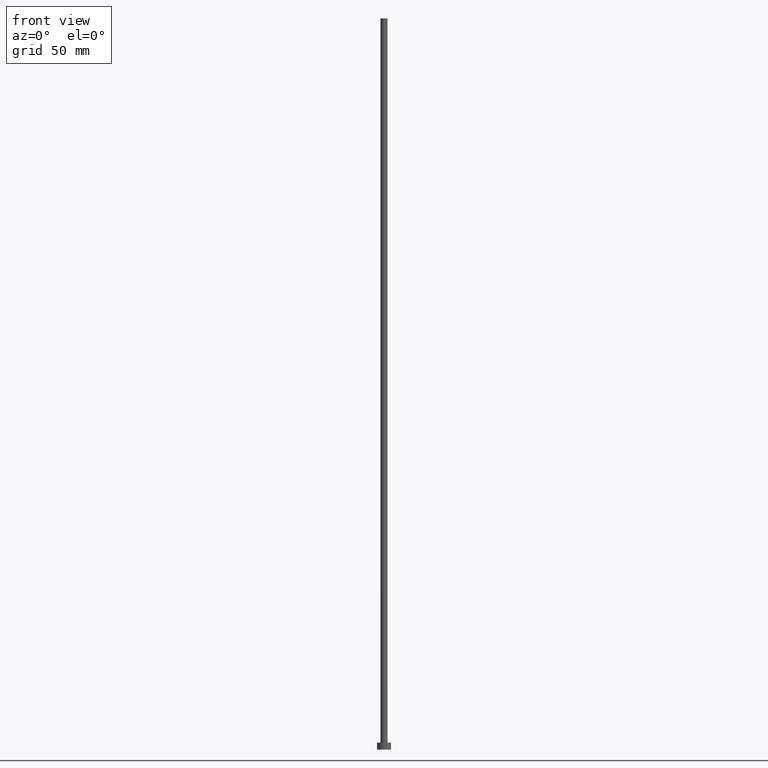
[diagram: clean part render]
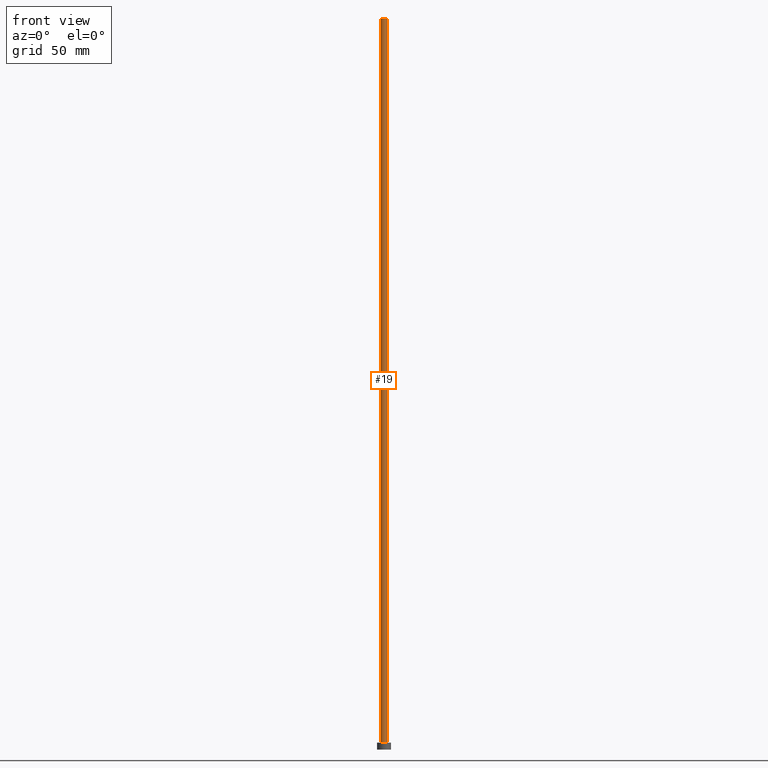
[diagram: same view with one face highlighted and labeled with its STEP entity id]
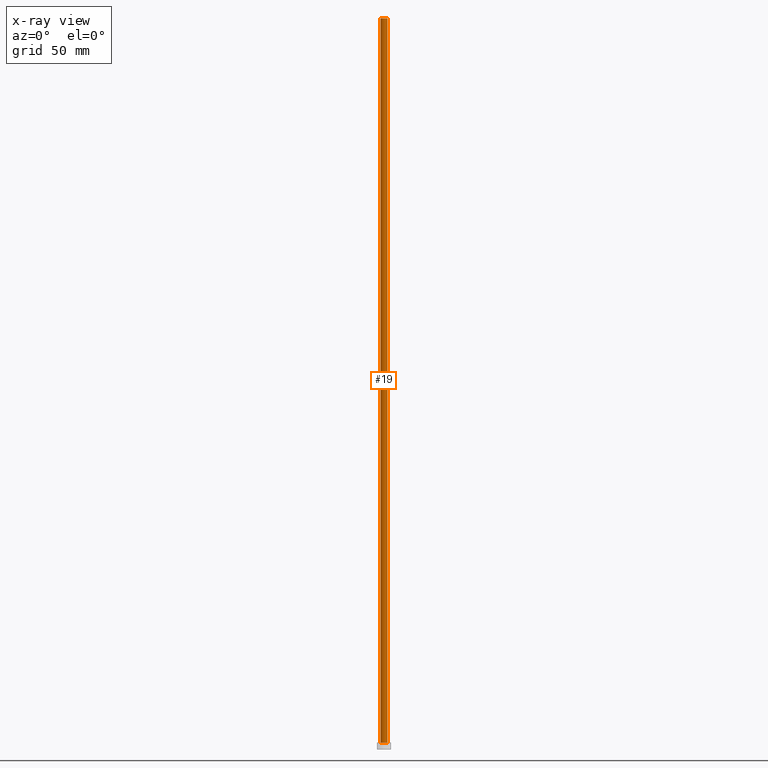
[diagram: x-ray of the same camera — body ghosted, the highlighted face saturated]
A machine part, front view. The second image highlights one B-rep face of the part: STEP entity #19.
The next image is the same camera in x-ray: the body ghosted, the highlighted face saturated — about 0% of this face is hidden behind the body in this view.
In plain terms, the highlighted cylindrical surface (edge-blend (fillet) strip) has radius 1.5 mm, axis along (-0, -0, -1).
Its self-contained STEP definition (entity closure, byte-faithful):
#4 = EDGE_LOOP ( 'NONE', ( #154, #193, #153, #115 ) ) ;
#6 = CARTESIAN_POINT ( 'NONE',  ( -1.500000000000000222, 0.000000000000000000, 3.000000000000000000 ) ) ;
#11 = CIRCLE ( 'NONE', #149, 1.500000000000000222 ) ;
#14 = LINE ( 'NONE', #206, #217 ) ;
#19 = ADVANCED_FACE ( 'NONE', ( #221 ), #79, .T. ) ;
#21 = CARTESIAN_POINT ( 'NONE',  ( -1.500000000000000222, 0.000000000000000000, 315.0000000000000000 ) ) ;
#23 = EDGE_CURVE ( 'NONE', #45, #208, #11, .T. ) ;
#27 = VERTEX_POINT ( 'NONE', #201 ) ;
#30 = CARTESIAN_POINT ( 'NONE',  ( 0.000000000000000000, 0.000000000000000000, 315.0000000000000000 ) ) ;
#40 = AXIS2_PLACEMENT_3D ( 'NONE', #119, #106, #69 ) ;
#45 = VERTEX_POINT ( 'NONE', #6 ) ;
#67 = DIRECTION ( 'NONE',  ( -1.000000000000000000, 0.000000000000000000, 0.000000000000000000 ) ) ;
#68 = CARTESIAN_POINT ( 'NONE',  ( -1.500000000000000222, 0.000000000000000000, 315.0000000000000000 ) ) ;
#69 = DIRECTION ( 'NONE',  ( 1.000000000000000000, 0.000000000000000000, 0.000000000000000000 ) ) ;
#79 = CYLINDRICAL_SURFACE ( 'NONE', #89, 1.500000000000000222 ) ;
#81 = CARTESIAN_POINT ( 'NONE',  ( 0.000000000000000000, 0.000000000000000000, 3.000000000000000000 ) ) ;
#88 = DIRECTION ( 'NONE',  ( -0.000000000000000000, -0.000000000000000000, -1.000000000000000000 ) ) ;
#89 = AXIS2_PLACEMENT_3D ( 'NONE', #30, #158, #67 ) ;
#100 = DIRECTION ( 'NONE',  ( 1.000000000000000000, 0.000000000000000000, 0.000000000000000000 ) ) ;
#104 = EDGE_CURVE ( 'NONE', #209, #45, #120, .T. ) ;
#106 = DIRECTION ( 'NONE',  ( 0.000000000000000000, 0.000000000000000000, 1.000000000000000000 ) ) ;
#115 = ORIENTED_EDGE ( 'NONE', *, *, #23, .T. ) ;
#119 = CARTESIAN_POINT ( 'NONE',  ( 0.000000000000000000, 0.000000000000000000, 315.0000000000000000 ) ) ;
#120 = LINE ( 'NONE', #68, #176 ) ;
#129 = CARTESIAN_POINT ( 'NONE',  ( 1.500000000000000222, 1.836970198721030181E-16, 3.000000000000000000 ) ) ;
#136 = EDGE_CURVE ( 'NONE', #209, #27, #224, .T. ) ;
#141 = DIRECTION ( 'NONE',  ( 0.000000000000000000, 0.000000000000000000, 1.000000000000000000 ) ) ;
#149 = AXIS2_PLACEMENT_3D ( 'NONE', #81, #141, #100 ) ;
#153 = ORIENTED_EDGE ( 'NONE', *, *, #104, .T. ) ;
#154 = ORIENTED_EDGE ( 'NONE', *, *, #202, .F. ) ;
#158 = DIRECTION ( 'NONE',  ( -0.000000000000000000, -0.000000000000000000, -1.000000000000000000 ) ) ;
#176 = VECTOR ( 'NONE', #180, 1000.000000000000000 ) ;
#180 = DIRECTION ( 'NONE',  ( -0.000000000000000000, -0.000000000000000000, -1.000000000000000000 ) ) ;
#193 = ORIENTED_EDGE ( 'NONE', *, *, #136, .F. ) ;
#201 = CARTESIAN_POINT ( 'NONE',  ( 1.500000000000000222, 1.836970198721030181E-16, 315.0000000000000000 ) ) ;
#202 = EDGE_CURVE ( 'NONE', #27, #208, #14, .T. ) ;
#206 = CARTESIAN_POINT ( 'NONE',  ( 1.500000000000000222, 1.836970198721030181E-16, 315.0000000000000000 ) ) ;
#208 = VERTEX_POINT ( 'NONE', #129 ) ;
#209 = VERTEX_POINT ( 'NONE', #21 ) ;
#217 = VECTOR ( 'NONE', #88, 1000.000000000000000 ) ;
#221 = FACE_OUTER_BOUND ( 'NONE', #4, .T. ) ;
#224 = CIRCLE ( 'NONE', #40, 1.500000000000000222 ) ;